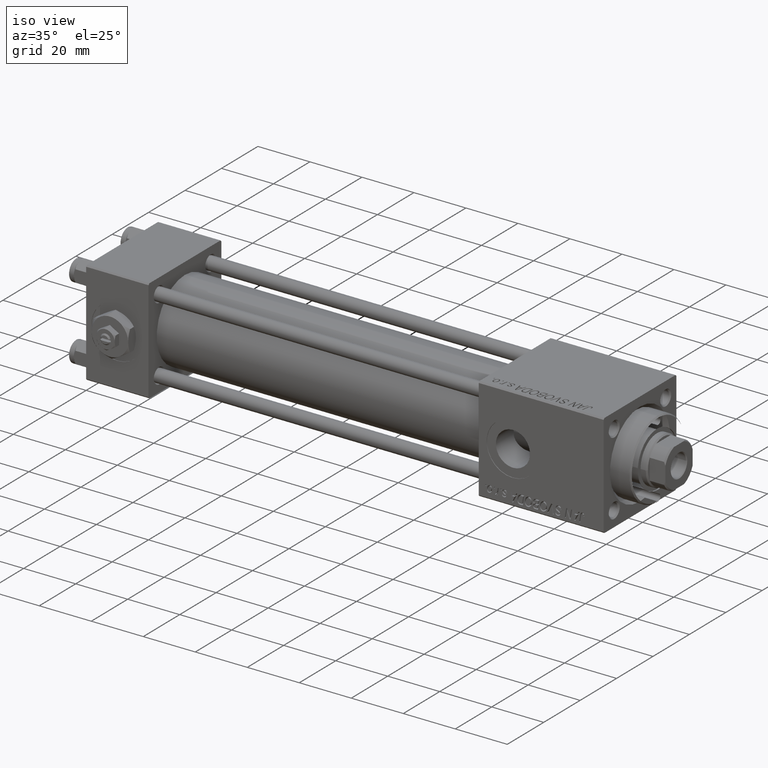
[diagram: clean part render]
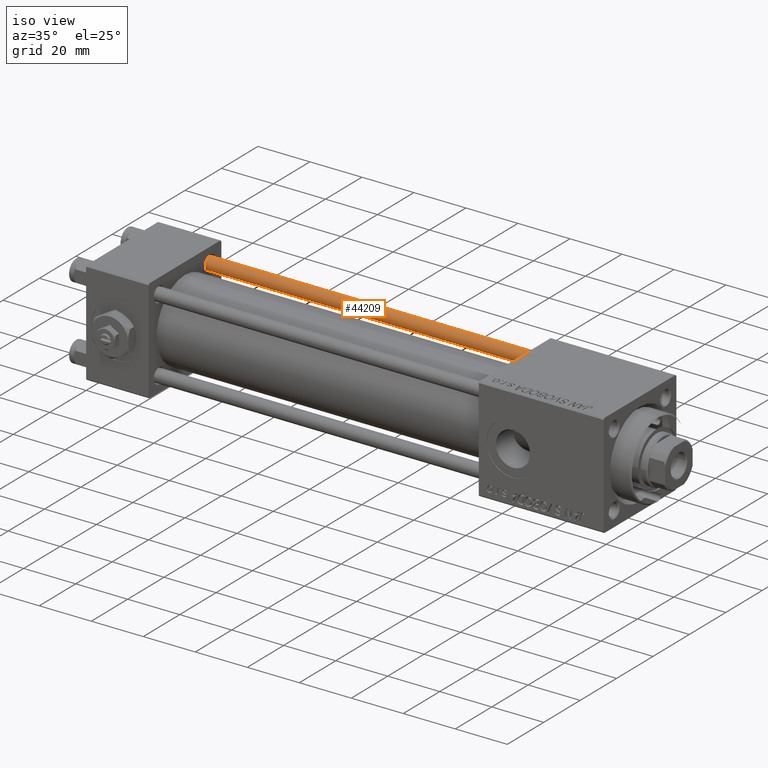
[diagram: same view with one face highlighted and labeled with its STEP entity id]
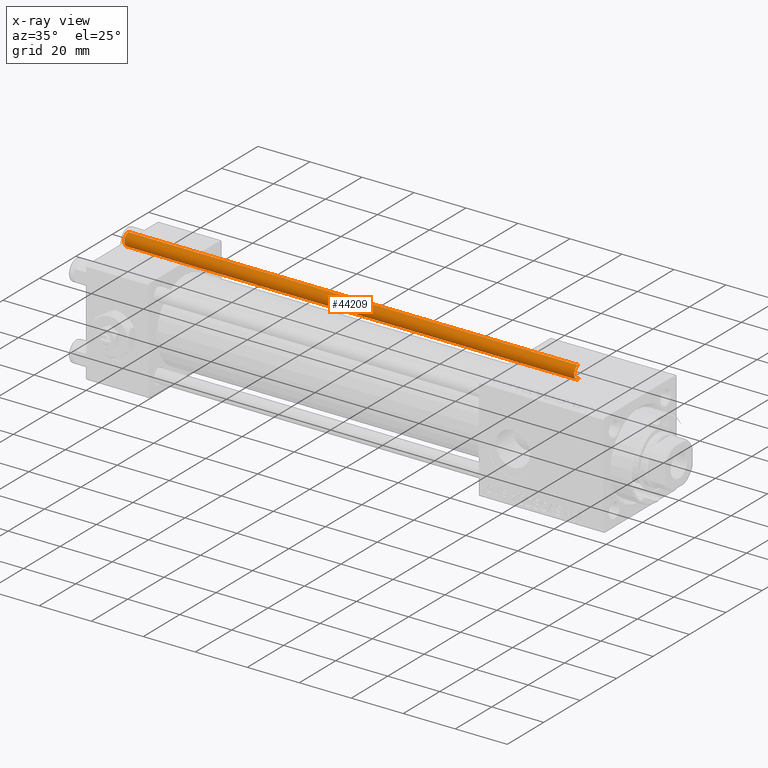
[diagram: x-ray of the same camera — body ghosted, the highlighted face saturated]
A machine part, iso view. The second image highlights one B-rep face of the part: STEP entity #44209.
The next image is the same camera in x-ray: the body ghosted, the highlighted face saturated — about 0% of this face is hidden behind the body in this view.
In plain terms, the highlighted cylindrical surface (edge-blend (fillet) strip) has radius 2.5 mm, axis along (-1, 0, 0).
Its self-contained STEP definition (entity closure, byte-faithful):
#733 = VERTEX_POINT ( 'NONE', #48254 ) ;
#1163 = CARTESIAN_POINT ( 'NONE',  ( -2.500000000000000000, 0.000000000000000000, 173.5000000000000000 ) ) ;
#2655 = DIRECTION ( 'NONE',  ( -0.000000000000000000, -0.000000000000000000, -1.000000000000000000 ) ) ;
#3333 = CARTESIAN_POINT ( 'NONE',  ( 0.000000000000000000, 0.000000000000000000, 0.5000000000000281997 ) ) ;
#5957 = EDGE_LOOP ( 'NONE', ( #7353, #31629, #19232, #7450 ) ) ;
#7353 = ORIENTED_EDGE ( 'NONE', *, *, #43319, .F. ) ;
#7450 = ORIENTED_EDGE ( 'NONE', *, *, #34699, .T. ) ;
#7513 = DIRECTION ( 'NONE',  ( -0.000000000000000000, -0.000000000000000000, 1.000000000000000000 ) ) ;
#10068 = DIRECTION ( 'NONE',  ( -1.000000000000000000, 0.000000000000000000, 0.000000000000000000 ) ) ;
#10712 = DIRECTION ( 'NONE',  ( -0.000000000000000000, -0.000000000000000000, -1.000000000000000000 ) ) ;
#11041 = CARTESIAN_POINT ( 'NONE',  ( -2.500000000000000000, 0.000000000000000000, 174.0000000000000000 ) ) ;
#11301 = LINE ( 'NONE', #11041, #34059 ) ;
#12816 = CARTESIAN_POINT ( 'NONE',  ( 2.500000000000000000, 3.061616997868383141E-16, 174.0000000000000000 ) ) ;
#14246 = DIRECTION ( 'NONE',  ( -0.000000000000000000, -0.000000000000000000, -1.000000000000000000 ) ) ;
#14528 = EDGE_CURVE ( 'NONE', #733, #17694, #16415, .T. ) ;
#16415 = CIRCLE ( 'NONE', #45759, 2.500000000000000000 ) ;
#16938 = CARTESIAN_POINT ( 'NONE',  ( 0.000000000000000000, 0.000000000000000000, 173.5000000000000000 ) ) ;
#17694 = VERTEX_POINT ( 'NONE', #1163 ) ;
#19232 = ORIENTED_EDGE ( 'NONE', *, *, #19491, .T. ) ;
#19491 = EDGE_CURVE ( 'NONE', #17694, #46753, #11301, .T. ) ;
#21388 = DIRECTION ( 'NONE',  ( 0.000000000000000000, 0.000000000000000000, -1.000000000000000000 ) ) ;
#25596 = DIRECTION ( 'NONE',  ( 1.000000000000000000, 0.000000000000000000, 0.000000000000000000 ) ) ;
#26289 = VECTOR ( 'NONE', #10712, 1000.000000000000000 ) ;
#26428 = DIRECTION ( 'NONE',  ( 1.000000000000000000, 0.000000000000000000, 0.000000000000000000 ) ) ;
#30525 = CARTESIAN_POINT ( 'NONE',  ( 0.000000000000000000, 0.000000000000000000, 174.0000000000000000 ) ) ;
#31126 = AXIS2_PLACEMENT_3D ( 'NONE', #3333, #7513, #26428 ) ;
#31629 = ORIENTED_EDGE ( 'NONE', *, *, #14528, .T. ) ;
#34059 = VECTOR ( 'NONE', #2655, 1000.000000000000000 ) ;
#34699 = EDGE_CURVE ( 'NONE', #46753, #42807, #45368, .T. ) ;
#34985 = CYLINDRICAL_SURFACE ( 'NONE', #49832, 2.500000000000000000 ) ;
#42807 = VERTEX_POINT ( 'NONE', #42856 ) ;
#42833 = CARTESIAN_POINT ( 'NONE',  ( -2.500000000000000000, 0.000000000000000000, 0.5000000000000281997 ) ) ;
#42856 = CARTESIAN_POINT ( 'NONE',  ( 2.500000000000000000, 3.061616997868383141E-16, 0.5000000000000281997 ) ) ;
#43319 = EDGE_CURVE ( 'NONE', #733, #42807, #48795, .T. ) ;
#44209 = ADVANCED_FACE ( 'NONE', ( #50242 ), #34985, .T. ) ;
#45368 = CIRCLE ( 'NONE', #31126, 2.500000000000000000 ) ;
#45759 = AXIS2_PLACEMENT_3D ( 'NONE', #16938, #21388, #25596 ) ;
#46753 = VERTEX_POINT ( 'NONE', #42833 ) ;
#48254 = CARTESIAN_POINT ( 'NONE',  ( 2.500000000000000000, 3.061616997868383141E-16, 173.5000000000000000 ) ) ;
#48795 = LINE ( 'NONE', #12816, #26289 ) ;
#49832 = AXIS2_PLACEMENT_3D ( 'NONE', #30525, #14246, #10068 ) ;
#50242 = FACE_OUTER_BOUND ( 'NONE', #5957, .T. ) ;